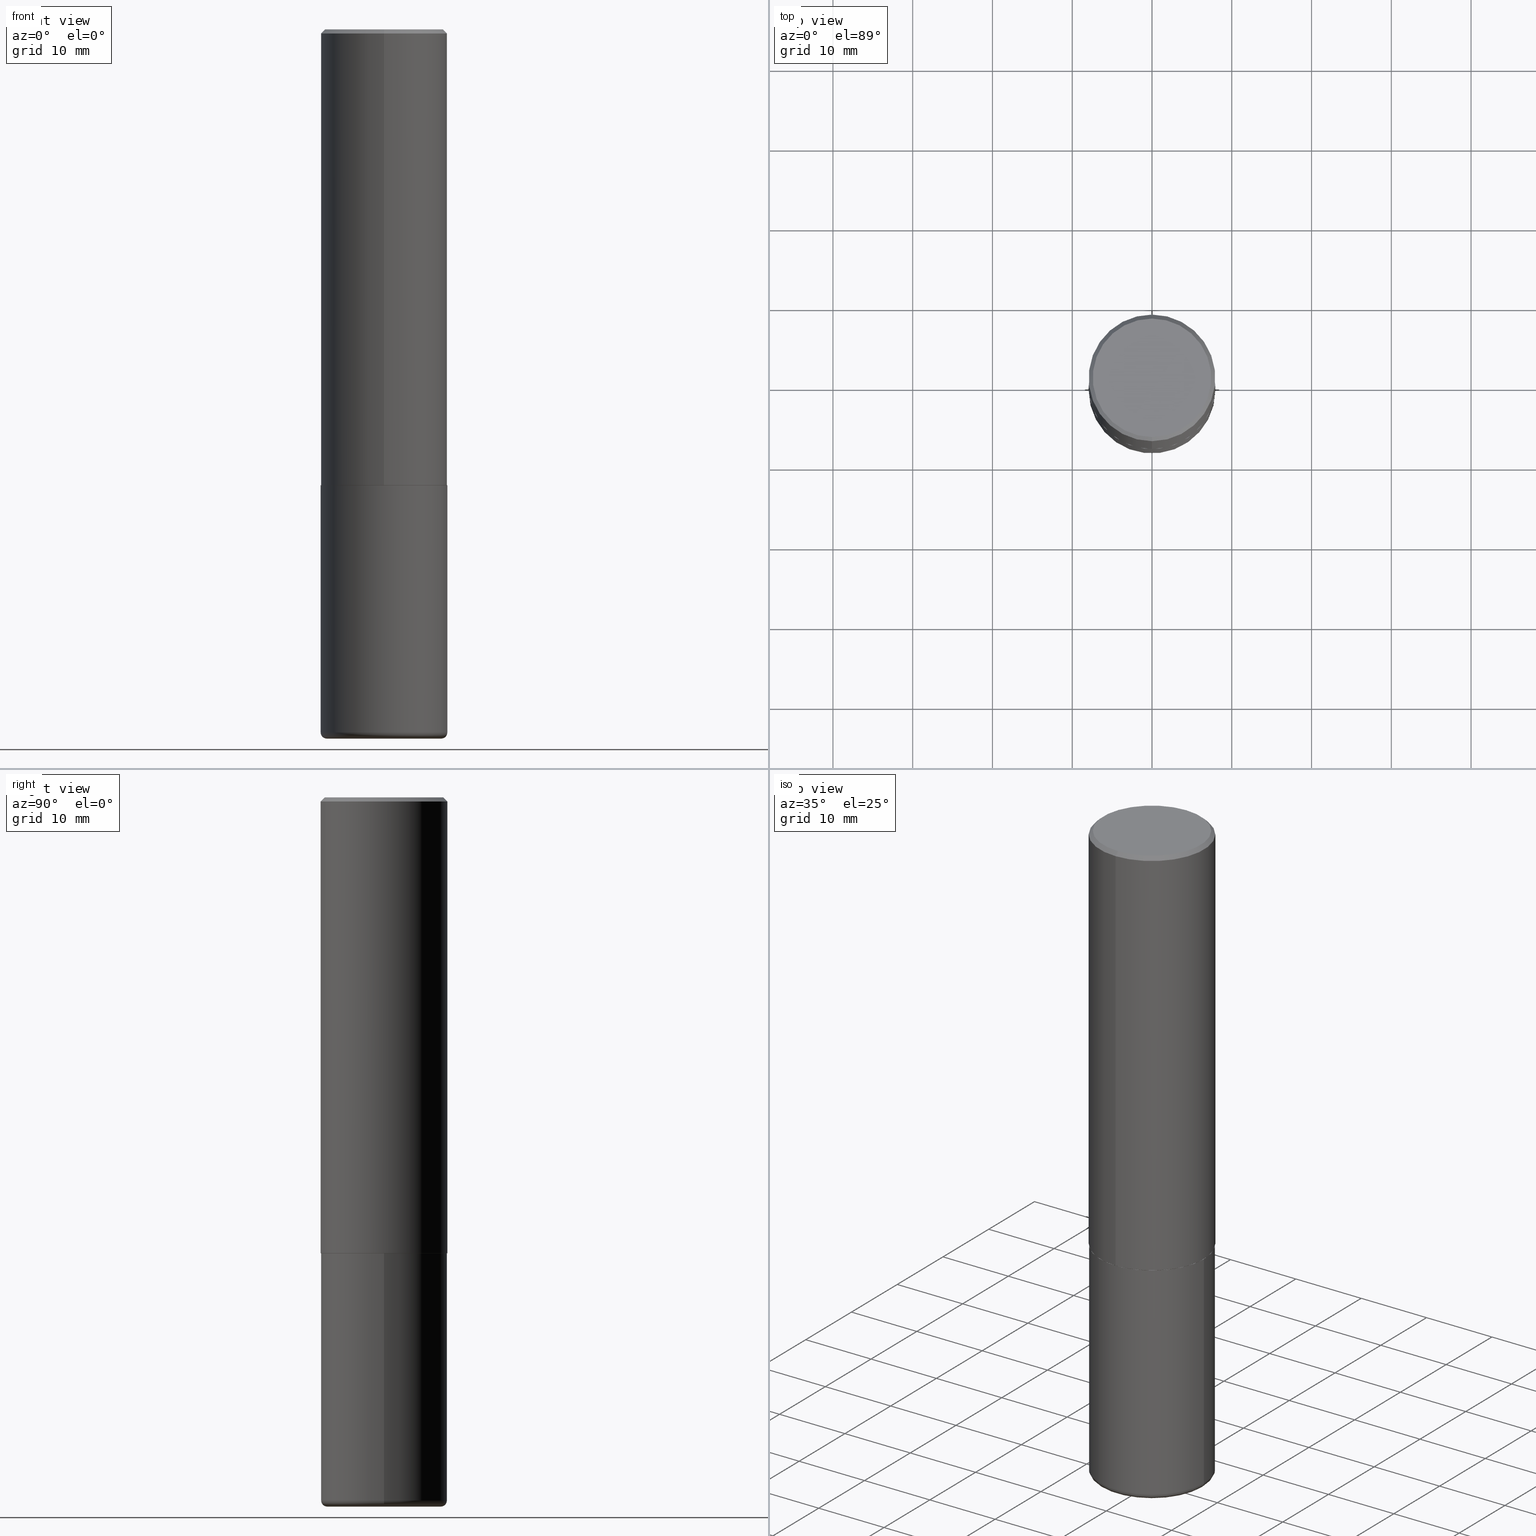
[diagram: canonical four-view strip — front | top / right | iso, engineering-drawing reading convention]
A machine part, canonical four-view strip (front | top / right | iso — engineering-drawing reading convention). The complete STEP part file that produces these views, byte-faithful:
ISO-10303-21;
HEADER;
FILE_DESCRIPTION (( 'STEP AP203' ),
    '1' );
FILE_NAME ('36709.STEP',
    '2024-03-01T17:24:08',
    ( '' ),
    ( '' ),
    'SwSTEP 2.0',
    'SolidWorks 2023',
    '' );
FILE_SCHEMA (( 'CONFIG_CONTROL_DESIGN' ));
ENDSEC;

DATA;
#1 = CARTESIAN_POINT ( 'NONE',  ( -2.182175836776905099E-15, -0.3125000000000081601, -2.248999999999998334 ) ) ;
#2 = ORGANIZATION ( 'UNSPECIFIED', 'UNSPECIFIED', '' ) ;
#3 = PERSON_AND_ORGANIZATION ( #79, #2 ) ;
#4 = CARTESIAN_POINT ( 'NONE',  ( 0.2824999999999999734, -1.419287164239738095E-14, -3.500000000000000444 ) ) ;
#5 = PERSON_AND_ORGANIZATION ( #79, #2 ) ;
#6 = LINE ( 'NONE', #131, #132 ) ;
#7 = DIRECTION ( 'NONE',  ( 1.000000000000000000, 0.000000000000000000, 0.000000000000000000 ) ) ;
#8 = APPROVAL_PERSON_ORGANIZATION ( #170, #62, #193 ) ;
#9 = VERTEX_POINT ( 'NONE', #1 ) ;
#10 = MANIFOLD_SOLID_BREP ( 'Body-Move/Copy2[1]', #94 ) ;
#11 = DIRECTION ( 'NONE',  ( -2.446358674475855534E-29, 3.490206996802678235E-15, 1.000000000000000000 ) ) ;
#12 = DIRECTION ( 'NONE',  ( 1.000000000000000000, -6.982962677686270655E-15, 0.000000000000000000 ) ) ;
#13 = AXIS2_PLACEMENT_3D ( 'NONE', #245, #206, #111 ) ;
#14 = DIRECTION ( 'NONE',  ( -2.446358674475855534E-29, 3.490206996802678235E-15, 1.000000000000000000 ) ) ;
#15 = APPROVAL_PERSON_ORGANIZATION ( #294, #377, #265 ) ;
#16 = APPROVAL ( #101, 'UNSPECIFIED' ) ;
#17 = CARTESIAN_POINT ( 'NONE',  ( 4.892717348951727429E-31, -6.980413993605380283E-17, -0.02000000000000006981 ) ) ;
#18 = EDGE_CURVE ( 'NONE', #192, #321, #404, .T. ) ;
#19 = DIRECTION ( 'NONE',  ( -2.446358674475855534E-29, 3.490206996802678235E-15, 1.000000000000000000 ) ) ;
#20 = AXIS2_PLACEMENT_3D ( 'NONE', #230, #365, #74 ) ;
#21 = ORIENTED_EDGE ( 'NONE', *, *, #239, .F. ) ;
#22 = CIRCLE ( 'NONE', #81, 0.3125000000000000000 ) ;
#23 = FACE_OUTER_BOUND ( 'NONE', #382, .T. ) ;
#24 = ORIENTED_EDGE ( 'NONE', *, *, #36, .F. ) ;
#25 = CARTESIAN_POINT ( 'NONE',  ( 3.832247084795318978E-29, -1.898936555520759464E-14, -3.500000000000000444 ) ) ;
#26 = DIMENSIONAL_EXPONENTS ( 1.000000000000000000, 0.000000000000000000, 0.000000000000000000, 0.000000000000000000, 0.000000000000000000, 0.000000000000000000, 0.000000000000000000 ) ;
#27 = EDGE_LOOP ( 'NONE', ( #350, #251, #411, #29 ) ) ;
#28 = DIRECTION ( 'NONE',  ( 1.000000000000000000, -6.982962677686266711E-15, 4.876176775795936353E-29 ) ) ;
#29 = ORIENTED_EDGE ( 'NONE', *, *, #116, .F. ) ;
#30 = AXIS2_PLACEMENT_3D ( 'NONE', #70, #169, #102 ) ;
#31 = DIRECTION ( 'NONE',  ( -6.982962677686265922E-15, -1.000000000000000000, 3.490206996802678235E-15 ) ) ;
#32 = CC_DESIGN_PERSON_AND_ORGANIZATION_ASSIGNMENT ( #301, #298, ( #269 ) ) ;
#33 = ORIENTED_EDGE ( 'NONE', *, *, #227, .F. ) ;
#34 =( CONVERSION_BASED_UNIT ( 'INCH', #252 ) LENGTH_UNIT ( ) NAMED_UNIT ( #26 ) );
#35 = CARTESIAN_POINT ( 'NONE',  ( -0.3125000000000000555, -9.894994196535401314E-15, -3.469999999999999751 ) ) ;
#36 = EDGE_CURVE ( 'NONE', #380, #253, #209, .T. ) ;
#37 = PERSON_AND_ORGANIZATION_ROLE ( 'classification_officer' ) ;
#38 = DIRECTION ( 'NONE',  ( -6.982962677686265133E-15, -1.000000000000000000, 3.496765431890256920E-15 ) ) ;
#39 = AXIS2_PLACEMENT_3D ( 'NONE', #173, #304, #361 ) ;
#40 = ADVANCED_FACE ( 'NONE', ( #225 ), #370, .T. ) ;
#41 = VECTOR ( 'NONE', #19, 39.37007874015748143 ) ;
#42 = LINE ( 'NONE', #100, #55 ) ;
#43 = MECHANICAL_CONTEXT ( 'NONE', #115, 'mechanical' ) ;
#44 = DIRECTION ( 'NONE',  ( -6.982962677686266711E-15, -1.000000000000000000, 3.491481338843145583E-15 ) ) ;
#45 = VERTEX_POINT ( 'NONE', #396 ) ;
#46 = CARTESIAN_POINT ( 'NONE',  ( 5.501860658896197188E-29, -7.849475535809221324E-15, -2.248999999999999222 ) ) ;
#47 = CARTESIAN_POINT ( 'NONE',  ( 8.559140821647978089E-29, -1.222018468595101092E-14, -3.500000000000000444 ) ) ;
#48 = LINE ( 'NONE', #375, #241 ) ;
#49 = UNCERTAINTY_MEASURE_WITH_UNIT (LENGTH_MEASURE( 1.000000000000000082E-05 ), #34, 'distance_accuracy_value', 'NONE');
#50 = DIRECTION ( 'NONE',  ( -6.982962677686265922E-15, -1.000000000000000000, 3.507991003100177457E-15 ) ) ;
#51 = FACE_OUTER_BOUND ( 'NONE', #177, .T. ) ;
#52 = VERTEX_POINT ( 'NONE', #35 ) ;
#53 = SECURITY_CLASSIFICATION ( '', '', #136 ) ;
#54 = DIRECTION ( 'NONE',  ( -2.446358674475855534E-29, 3.490206996802678235E-15, 1.000000000000000000 ) ) ;
#55 = VECTOR ( 'NONE', #368, 39.37007874015748143 ) ;
#56 = ORIENTED_EDGE ( 'NONE', *, *, #106, .T. ) ;
#57 = CC_DESIGN_SECURITY_CLASSIFICATION ( #53, ( #201 ) ) ;
#58 = CARTESIAN_POINT ( 'NONE',  ( 2.216893335571567797E-15, 0.3114999999999921720, -2.250000000000000444 ) ) ;
#59 = ORIENTED_EDGE ( 'NONE', *, *, #293, .T. ) ;
#60 = LINE ( 'NONE', #256, #88 ) ;
#61 = ORIENTED_EDGE ( 'NONE', *, *, #273, .F. ) ;
#62 = APPROVAL ( #99, 'UNSPECIFIED' ) ;
#63 = DIRECTION ( 'NONE',  ( 2.438088387897960049E-29, -3.491481338843145188E-15, -1.000000000000000000 ) ) ;
#64 = ORIENTED_EDGE ( 'NONE', *, *, #393, .T. ) ;
#65 = CONICAL_SURFACE ( 'NONE', #236, 0.3125000000000000000, 0.7853981633974469467 ) ;
#66 = DIRECTION ( 'NONE',  ( -2.446358674475855534E-29, 3.490206996802678235E-15, 1.000000000000000000 ) ) ;
#67 = APPROVAL_STATUS ( 'not_yet_approved' ) ;
#68 = FACE_OUTER_BOUND ( 'NONE', #331, .T. ) ;
#69 = APPROVAL_DATE_TIME ( #163, #62 ) ;
#70 = CARTESIAN_POINT ( 'NONE',  ( 8.485776757462424574E-29, -1.211544024578571439E-14, -3.469999999999999751 ) ) ;
#71 = CONICAL_SURFACE ( 'NONE', #412, 0.3114999999999999991, 0.7853981633975507526 ) ;
#72 = CIRCLE ( 'NONE', #276, 0.3124999999999999445 ) ;
#73 = PERSON_AND_ORGANIZATION ( #79, #2 ) ;
#74 = DIRECTION ( 'NONE',  ( -1.000000000000000000, 6.982962677686265922E-15, -4.876176775795935793E-29 ) ) ;
#75 = CARTESIAN_POINT ( 'NONE',  ( 0.000000000000000000, 0.000000000000000000, 0.000000000000000000 ) ) ;
#76 = CARTESIAN_POINT ( 'NONE',  ( 8.485776757462424574E-29, -1.211544024578571439E-14, -3.469999999999999751 ) ) ;
#77 = EDGE_CURVE ( 'NONE', #388, #159, #6, .T. ) ;
#78 = AXIS2_PLACEMENT_3D ( 'NONE', #378, #325, #28 ) ;
#79 = PERSON ( 'UNSPECIFIED', 'UNSPECIFIED', 'UNSPECIFIED', ('UNSPECIFIED'), ('UNSPECIFIED'), ('UNSPECIFIED') ) ;
#80 = DIRECTION ( 'NONE',  ( 2.446358674475855534E-29, -3.490206996802678235E-15, -1.000000000000000000 ) ) ;
#81 = AXIS2_PLACEMENT_3D ( 'NONE', #349, #117, #223 ) ;
#82 = CARTESIAN_POINT ( 'NONE',  ( 5.504307017570672990E-29, -7.852965742806024253E-15, -2.249999999999999556 ) ) ;
#83 = LINE ( 'NONE', #91, #360 ) ;
#84 = CYLINDRICAL_SURFACE ( 'NONE', #133, 0.3125000000000001665 ) ;
#85 = ORIENTED_EDGE ( 'NONE', *, *, #309, .F. ) ;
#86 = CARTESIAN_POINT ( 'NONE',  ( 5.543544336137775157E-45, -7.908945417915609657E-31, -2.266039070221584626E-16 ) ) ;
#87 = ORIENTED_EDGE ( 'NONE', *, *, #353, .F. ) ;
#88 = VECTOR ( 'NONE', #54, 39.37007874015748143 ) ;
#89 = DIRECTION ( 'NONE',  ( -1.000000000000000000, 6.982962677686265922E-15, -4.876176775795935793E-29 ) ) ;
#90 = ORIENTED_EDGE ( 'NONE', *, *, #106, .F. ) ;
#91 = CARTESIAN_POINT ( 'NONE',  ( 2.182175836776958741E-15, 0.3124999999999999445, -0.02000000000000116268 ) ) ;
#92 = ORIENTED_EDGE ( 'NONE', *, *, #123, .F. ) ;
#93 = ORIENTED_EDGE ( 'NONE', *, *, #277, .T. ) ;
#94 = CLOSED_SHELL ( 'NONE', ( #165, #145, #137, #406, #97, #311 ) ) ;
#95 = CIRCLE ( 'NONE', #242, 0.3114999999999999991 ) ;
#96 = DIRECTION ( 'NONE',  ( 0.000000000000000000, 0.000000000000000000, 1.000000000000000000 ) ) ;
#97 = ADVANCED_FACE ( 'NONE', ( #68 ), #142, .T. ) ;
#98 = DIRECTION ( 'NONE',  ( -6.982962677686265133E-15, -1.000000000000000000, 3.490206996802678235E-15 ) ) ;
#99 = APPROVAL_STATUS ( 'not_yet_approved' ) ;
#100 = CARTESIAN_POINT ( 'NONE',  ( 0.3125000000000000000, -2.182175836776958347E-15, 1.523805242436230075E-29 ) ) ;
#101 = APPROVAL_STATUS ( 'not_yet_approved' ) ;
#102 = DIRECTION ( 'NONE',  ( 1.000000000000000000, -6.982962677686264344E-15, 4.883557194083112340E-29 ) ) ;
#103 = CIRCLE ( 'NONE', #414, 0.2824999999999999734 ) ;
#104 = SHAPE_DEFINITION_REPRESENTATION ( #146, #114 ) ;
#105 = DIRECTION ( 'NONE',  ( 5.024295867788576727E-15, 0.7071067811866224018, 0.7071067811864726327 ) ) ;
#106 = EDGE_CURVE ( 'NONE', #323, #118, #42, .T. ) ;
#107 = DIRECTION ( 'NONE',  ( -6.982962677686265922E-15, -1.000000000000000000, 3.496765431890253764E-15 ) ) ;
#108 = CONICAL_SURFACE ( 'NONE', #39, 0.3114999999999999991, 0.7853981633975507526 ) ;
#109 = CIRCLE ( 'NONE', #306, 0.2925000000000002043 ) ;
#110 = DIRECTION ( 'NONE',  ( 6.982962677686265133E-15, 1.000000000000000000, -3.496765431890256920E-15 ) ) ;
#111 = DIRECTION ( 'NONE',  ( 6.982962677686265922E-15, 1.000000000000000000, -3.490206996802678235E-15 ) ) ;
#112 = CIRCLE ( 'NONE', #179, 0.3125000000000000000 ) ;
#113 = LOCAL_TIME ( 12, 24, 8.000000000000000000, #139 ) ;
#114 = ADVANCED_BREP_SHAPE_REPRESENTATION ( '36709', ( #10, #285, #184 ), #319 ) ;
#115 = APPLICATION_CONTEXT ( 'configuration controlled 3d designs of mechanical parts and assemblies' ) ;
#116 = EDGE_CURVE ( 'NONE', #124, #323, #313, .T. ) ;
#117 = DIRECTION ( 'NONE',  ( -2.445468806185136597E-29, 3.491481338843145583E-15, 1.000000000000000000 ) ) ;
#118 = VERTEX_POINT ( 'NONE', #340 ) ;
#119 = ADVANCED_FACE ( 'NONE', ( #172 ), #108, .T. ) ;
#120 = ORIENTED_EDGE ( 'NONE', *, *, #334, .F. ) ;
#121 = DIRECTION ( 'NONE',  ( -2.446358674475855534E-29, 3.490206996802678235E-15, 1.000000000000000000 ) ) ;
#122 = CIRCLE ( 'NONE', #175, 0.3114999999999999991 ) ;
#123 = EDGE_CURVE ( 'NONE', #127, #52, #366, .T. ) ;
#124 = VERTEX_POINT ( 'NONE', #4 ) ;
#125 = LOCAL_TIME ( 12, 24, 8.000000000000000000, #232 ) ;
#126 = PLANE ( 'NONE',  #246 ) ;
#127 = VERTEX_POINT ( 'NONE', #135 ) ;
#128 = APPLICATION_PROTOCOL_DEFINITION ( 'international standard', 'config_control_design', 1994, #115 ) ;
#129 = ORIENTED_EDGE ( 'NONE', *, *, #174, .T. ) ;
#130 = PERSON_AND_ORGANIZATION ( #79, #2 ) ;
#131 = CARTESIAN_POINT ( 'NONE',  ( 2.213340621892766504E-15, 0.3114999999999921720, -2.250000000000000444 ) ) ;
#132 = VECTOR ( 'NONE', #105, 39.37007874015748143 ) ;
#133 = AXIS2_PLACEMENT_3D ( 'NONE', #213, #121, #351 ) ;
#134 = APPLICATION_PROTOCOL_DEFINITION ( 'international standard', 'config_control_design', 1994, #300 ) ;
#135 = CARTESIAN_POINT ( 'NONE',  ( -0.2824999999999999734, -1.005394782698206391E-14, -3.500000000000000444 ) ) ;
#136 = SECURITY_CLASSIFICATION_LEVEL ( 'unclassified' ) ;
#137 = ADVANCED_FACE ( 'NONE', ( #266 ), #390, .F. ) ;
#138 = DIRECTION ( 'NONE',  ( -2.445468806185136597E-29, 3.491481338843145583E-15, 1.000000000000000000 ) ) ;
#139 = COORDINATED_UNIVERSAL_TIME_OFFSET ( 5, 0, .BEHIND. ) ;
#140 = FACE_OUTER_BOUND ( 'NONE', #409, .T. ) ;
#141 = PRODUCT_DEFINITION ( 'UNKNOWN', '', #201, #316 ) ;
#142 = TOROIDAL_SURFACE ( 'NONE', #217, 0.2824999999999999734, 0.03000000000000022787 ) ;
#143 = AXIS2_PLACEMENT_3D ( 'NONE', #383, #415, #322 ) ;
#144 = ORIENTED_EDGE ( 'NONE', *, *, #77, .T. ) ;
#145 = ADVANCED_FACE ( 'NONE', ( #234 ), #275, .T. ) ;
#146 = PRODUCT_DEFINITION_SHAPE ( 'NONE', 'NONE',  #141 ) ;
#147 = DIRECTION ( 'NONE',  ( -2.446358674475855534E-29, 3.490206996802678235E-15, 1.000000000000000000 ) ) ;
#148 = FACE_OUTER_BOUND ( 'NONE', #355, .T. ) ;
#149 = LOCAL_TIME ( 12, 24, 8.000000000000000000, #270 ) ;
#150 = FACE_OUTER_BOUND ( 'NONE', #352, .T. ) ;
#151 = DIRECTION ( 'NONE',  ( -6.982962677686265922E-15, -1.000000000000000000, 3.507991003100177457E-15 ) ) ;
#152 = DIRECTION ( 'NONE',  ( 1.000000000000000000, -6.982962677686266711E-15, 4.876176775795936353E-29 ) ) ;
#153 = CC_DESIGN_APPROVAL ( #377, ( #201 ) ) ;
#154 = CARTESIAN_POINT ( 'NONE',  ( -0.3125000000000000000, 2.220446049250313081E-15, -1.537167215704658232E-29 ) ) ;
#155 = EDGE_LOOP ( 'NONE', ( #129, #157 ) ) ;
#156 = CYLINDRICAL_SURFACE ( 'NONE', #78, 0.3125000000000000000 ) ;
#157 = ORIENTED_EDGE ( 'NONE', *, *, #273, .T. ) ;
#158 = DIRECTION ( 'NONE',  ( -2.445468806185136877E-29, 3.491481338843145188E-15, 1.000000000000000000 ) ) ;
#159 = VERTEX_POINT ( 'NONE', #302 ) ;
#160 = ORIENTED_EDGE ( 'NONE', *, *, #293, .F. ) ;
#161 = CARTESIAN_POINT ( 'NONE',  ( -2.175192874099216718E-15, -0.3115000000000078817, -2.249999999999998224 ) ) ;
#162 = ORIENTED_EDGE ( 'NONE', *, *, #18, .T. ) ;
#163 = DATE_AND_TIME ( #332, #149 ) ;
#164 = ORIENTED_EDGE ( 'NONE', *, *, #353, .T. ) ;
#165 = ADVANCED_FACE ( 'NONE', ( #140 ), #342, .T. ) ;
#166 = CALENDAR_DATE ( 2024, 1, 3 ) ;
#167 = CARTESIAN_POINT ( 'NONE',  ( -0.2824999999999999734, -1.010815701726343156E-14, -3.469999999999999751 ) ) ;
#168 = AXIS2_PLACEMENT_3D ( 'NONE', #372, #80, #207 ) ;
#169 = DIRECTION ( 'NONE',  ( -2.445468806185136597E-29, 3.491481338843145583E-15, 1.000000000000000000 ) ) ;
#170 = PERSON_AND_ORGANIZATION ( #79, #2 ) ;
#171 = PRODUCT_RELATED_PRODUCT_CATEGORY ( 'detail', '', ( #269 ) ) ;
#172 = FACE_OUTER_BOUND ( 'NONE', #261, .T. ) ;
#173 = CARTESIAN_POINT ( 'NONE',  ( 5.504307017570672990E-29, -7.852965742806024253E-15, -2.249999999999999556 ) ) ;
#174 = EDGE_CURVE ( 'NONE', #118, #45, #112, .T. ) ;
#175 = AXIS2_PLACEMENT_3D ( 'NONE', #278, #147, #50 ) ;
#176 = APPROVAL_PERSON_ORGANIZATION ( #267, #16, #303 ) ;
#177 = EDGE_LOOP ( 'NONE', ( #85, #21 ) ) ;
#178 = DIRECTION ( 'NONE',  ( -2.445468806185136597E-29, 3.491481338843145583E-15, 1.000000000000000000 ) ) ;
#179 = AXIS2_PLACEMENT_3D ( 'NONE', #374, #312, #279 ) ;
#180 = LOCAL_TIME ( 12, 24, 8.000000000000000000, #263 ) ;
#181 = CARTESIAN_POINT ( 'NONE',  ( 5.504307017570672990E-29, -7.852965742806024253E-15, -2.249999999999999556 ) ) ;
#182 = ORIENTED_EDGE ( 'NONE', *, *, #258, .F. ) ;
#183 = CLOSED_SHELL ( 'NONE', ( #119, #397, #262, #249, #40, #231, #280, #202 ) ) ;
#184 = AXIS2_PLACEMENT_3D ( 'NONE', #75, #96, #7 ) ;
#185 = LINE ( 'NONE', #320, #41 ) ;
#186 = ORIENTED_EDGE ( 'NONE', *, *, #330, .F. ) ;
#187 = DIRECTION ( 'NONE',  ( -2.445468806185136597E-29, 3.491481338843145583E-15, 1.000000000000000000 ) ) ;
#188 = ORIENTED_EDGE ( 'NONE', *, *, #239, .T. ) ;
#189 = FACE_OUTER_BOUND ( 'NONE', #260, .T. ) ;
#190 = ORIENTED_EDGE ( 'NONE', *, *, #334, .T. ) ;
#191 = CARTESIAN_POINT ( 'NONE',  ( 0.3125000000000000555, -1.429761608256267432E-14, -3.469999999999999751 ) ) ;
#192 = VERTEX_POINT ( 'NONE', #238 ) ;
#193 = APPROVAL_ROLE ( '' ) ;
#194 = DIRECTION ( 'NONE',  ( -2.446358674475855534E-29, 3.490206996802678235E-15, 1.000000000000000000 ) ) ;
#195 = DATE_AND_TIME ( #339, #113 ) ;
#196 = DIRECTION ( 'NONE',  ( -2.445468806185136597E-29, 3.491481338843145583E-15, 1.000000000000000000 ) ) ;
#197 = EDGE_CURVE ( 'NONE', #253, #380, #235, .T. ) ;
#198 = DATE_AND_TIME ( #166, #314 ) ;
#199 = CARTESIAN_POINT ( 'NONE',  ( 4.892717348951727429E-31, -6.980413993605380283E-17, -0.02000000000000006981 ) ) ;
#200 = AXIS2_PLACEMENT_3D ( 'NONE', #17, #14, #347 ) ;
#201 = PRODUCT_DEFINITION_FORMATION_WITH_SPECIFIED_SOURCE ( 'ANY', '', #269, .NOT_KNOWN. ) ;
#202 = ADVANCED_FACE ( 'NONE', ( #150 ), #348, .F. ) ;
#203 = DATE_AND_TIME ( #367, #125 ) ;
#204 = ORIENTED_EDGE ( 'NONE', *, *, #345, .T. ) ;
#205 = DIRECTION ( 'NONE',  ( 1.000000000000000000, -6.982962677686280121E-15, 0.000000000000000000 ) ) ;
#206 = DIRECTION ( 'NONE',  ( 2.446358674475855254E-29, -3.490206996802678235E-15, -1.000000000000000000 ) ) ;
#207 = DIRECTION ( 'NONE',  ( 6.982962677686265133E-15, 1.000000000000000000, -3.496765431890256920E-15 ) ) ;
#208 = DIRECTION ( 'NONE',  ( -6.982962677686265922E-15, -1.000000000000000000, 3.496765431890253764E-15 ) ) ;
#209 = CIRCLE ( 'NONE', #327, 0.3125000000000000000 ) ;
#210 = CC_DESIGN_APPROVAL ( #62, ( #141 ) ) ;
#211 = EDGE_CURVE ( 'NONE', #159, #9, #371, .T. ) ;
#212 = CARTESIAN_POINT ( 'NONE',  ( 5.501860658896197188E-29, -7.849475535809221324E-15, -2.248999999999999222 ) ) ;
#213 = CARTESIAN_POINT ( 'NONE',  ( 0.000000000000000000, 0.000000000000000000, 0.000000000000000000 ) ) ;
#214 = PLANE ( 'NONE',  #289 ) ;
#215 = CC_DESIGN_DATE_AND_TIME_ASSIGNMENT ( #198, #337, ( #53 ) ) ;
#216 = ORIENTED_EDGE ( 'NONE', *, *, #227, .T. ) ;
#217 = AXIS2_PLACEMENT_3D ( 'NONE', #76, #196, #237 ) ;
#218 = AXIS2_PLACEMENT_3D ( 'NONE', #286, #281, #379 ) ;
#219 = DIRECTION ( 'NONE',  ( -6.982962677686265922E-15, -1.000000000000000000, 3.507991003100177457E-15 ) ) ;
#220 = EDGE_LOOP ( 'NONE', ( #326, #398, #416, #359 ) ) ;
#221 = FACE_OUTER_BOUND ( 'NONE', #220, .T. ) ;
#222 = EDGE_LOOP ( 'NONE', ( #33, #87, #64, #287 ) ) ;
#223 = DIRECTION ( 'NONE',  ( 1.000000000000000000, -6.982962677686265133E-15, 0.000000000000000000 ) ) ;
#224 = ORIENTED_EDGE ( 'NONE', *, *, #197, .T. ) ;
#225 = FACE_OUTER_BOUND ( 'NONE', #336, .T. ) ;
#226 = CALENDAR_DATE ( 2024, 1, 3 ) ;
#227 = EDGE_CURVE ( 'NONE', #192, #253, #48, .T. ) ;
#228 = CARTESIAN_POINT ( 'NONE',  ( 0.2824999999999999734, -1.408812720223208600E-14, -3.469999999999999751 ) ) ;
#229 = PERSON_AND_ORGANIZATION_ROLE ( 'creator' ) ;
#230 = CARTESIAN_POINT ( 'NONE',  ( 5.502304813916556222E-29, -7.855833012397075293E-15, -2.249999999999999556 ) ) ;
#231 = ADVANCED_FACE ( 'NONE', ( #310 ), #71, .T. ) ;
#232 = COORDINATED_UNIVERSAL_TIME_OFFSET ( 5, 0, .BEHIND. ) ;
#233 = AXIS2_PLACEMENT_3D ( 'NONE', #46, #11, #107 ) ;
#234 = FACE_OUTER_BOUND ( 'NONE', #27, .T. ) ;
#235 = CIRCLE ( 'NONE', #200, 0.3125000000000000000 ) ;
#236 = AXIS2_PLACEMENT_3D ( 'NONE', #274, #400, #110 ) ;
#237 = DIRECTION ( 'NONE',  ( 1.000000000000000000, -6.982962677686264344E-15, 4.883557194083112340E-29 ) ) ;
#238 = CARTESIAN_POINT ( 'NONE',  ( -2.075300644325888676E-15, -0.2925000000000002043, 7.942816395426258046E-16 ) ) ;
#239 = EDGE_CURVE ( 'NONE', #388, #284, #122, .T. ) ;
#240 = FACE_OUTER_BOUND ( 'NONE', #222, .T. ) ;
#241 = VECTOR ( 'NONE', #315, 39.37007874015748143 ) ;
#242 = AXIS2_PLACEMENT_3D ( 'NONE', #358, #354, #219 ) ;
#243 = DIRECTION ( 'NONE',  ( -2.446358674475855534E-29, 3.490206996802678235E-15, 1.000000000000000000 ) ) ;
#244 = CC_DESIGN_PERSON_AND_ORGANIZATION_ASSIGNMENT ( #5, #389, ( #201 ) ) ;
#245 = CARTESIAN_POINT ( 'NONE',  ( 2.042516583223234512E-15, 0.2925000000000002043, -1.134187500075863227E-15 ) ) ;
#246 = AXIS2_PLACEMENT_3D ( 'NONE', #25, #63, #89 ) ;
#247 = EDGE_CURVE ( 'NONE', #9, #159, #343, .T. ) ;
#248 = LINE ( 'NONE', #154, #401 ) ;
#249 = ADVANCED_FACE ( 'NONE', ( #240 ), #373, .T. ) ;
#250 = CARTESIAN_POINT ( 'NONE',  ( -2.175192874099216718E-15, -0.3115000000000078817, -2.249999999999998224 ) ) ;
#251 = ORIENTED_EDGE ( 'NONE', *, *, #123, .T. ) ;
#252 = LENGTH_MEASURE_WITH_UNIT ( LENGTH_MEASURE( 0.02539999999999999897 ), #290 );
#253 = VERTEX_POINT ( 'NONE', #346 ) ;
#254 = AXIS2_PLACEMENT_3D ( 'NONE', #212, #308, #208 ) ;
#255 = CIRCLE ( 'NONE', #218, 0.2824999999999999734 ) ;
#256 = CARTESIAN_POINT ( 'NONE',  ( 2.220446049250313475E-15, 0.3125000000000001665, -1.090689686500837491E-15 ) ) ;
#257 = ORIENTED_EDGE ( 'NONE', *, *, #18, .F. ) ;
#258 = EDGE_CURVE ( 'NONE', #124, #127, #103, .T. ) ;
#259 = DIRECTION ( 'NONE',  ( -4.937700262165053702E-15, -0.7071067811866175168, 0.7071067811864775177 ) ) ;
#260 = EDGE_LOOP ( 'NONE', ( #182, #384 ) ) ;
#261 = EDGE_LOOP ( 'NONE', ( #386, #144, #292, #120 ) ) ;
#262 = ADVANCED_FACE ( 'NONE', ( #148 ), #65, .T. ) ;
#263 = COORDINATED_UNIVERSAL_TIME_OFFSET ( 5, 0, .BEHIND. ) ;
#264 = ORIENTED_EDGE ( 'NONE', *, *, #399, .F. ) ;
#265 = APPROVAL_ROLE ( '' ) ;
#266 = FACE_OUTER_BOUND ( 'NONE', #155, .T. ) ;
#267 = PERSON_AND_ORGANIZATION ( #79, #2 ) ;
#268 = ORIENTED_EDGE ( 'NONE', *, *, #116, .T. ) ;
#269 = PRODUCT ( '36709', '36709', '', ( #43 ) ) ;
#270 = COORDINATED_UNIVERSAL_TIME_OFFSET ( 5, 0, .BEHIND. ) ;
#271 = CARTESIAN_POINT ( 'NONE',  ( 0.000000000000000000, 0.000000000000000000, 0.000000000000000000 ) ) ;
#272 = ORIENTED_EDGE ( 'NONE', *, *, #324, .T. ) ;
#273 = EDGE_CURVE ( 'NONE', #45, #118, #22, .T. ) ;
#274 = CARTESIAN_POINT ( 'NONE',  ( 4.892717348951727429E-31, -6.980413993605380283E-17, -0.02000000000000006981 ) ) ;
#275 = TOROIDAL_SURFACE ( 'NONE', #30, 0.2824999999999999734, 0.03000000000000022787 ) ;
#276 = AXIS2_PLACEMENT_3D ( 'NONE', #317, #187, #356 ) ;
#277 = EDGE_CURVE ( 'NONE', #323, #52, #328, .T. ) ;
#278 = CARTESIAN_POINT ( 'NONE',  ( 5.504307017570672990E-29, -7.852965742806024253E-15, -2.249999999999999556 ) ) ;
#279 = DIRECTION ( 'NONE',  ( 1.000000000000000000, -6.982962677686265133E-15, 0.000000000000000000 ) ) ;
#280 = ADVANCED_FACE ( 'NONE', ( #51 ), #214, .F. ) ;
#281 = DIRECTION ( 'NONE',  ( -2.445468806185136597E-29, 3.491481338843145583E-15, 1.000000000000000000 ) ) ;
#282 = ORIENTED_EDGE ( 'NONE', *, *, #174, .F. ) ;
#283 = DIRECTION ( 'NONE',  ( -2.446358674475855254E-29, 3.490206996802678235E-15, 1.000000000000000000 ) ) ;
#284 = VERTEX_POINT ( 'NONE', #161 ) ;
#285 = MANIFOLD_SOLID_BREP ( 'Body-Move/Copy2[2]', #183 ) ;
#286 = CARTESIAN_POINT ( 'NONE',  ( 8.559140821647978089E-29, -1.222018468595101092E-14, -3.500000000000000444 ) ) ;
#287 = ORIENTED_EDGE ( 'NONE', *, *, #36, .T. ) ;
#288 = AXIS2_PLACEMENT_3D ( 'NONE', #228, #44, #205 ) ;
#289 = AXIS2_PLACEMENT_3D ( 'NONE', #181, #283, #31 ) ;
#290 =( LENGTH_UNIT ( ) NAMED_UNIT ( * ) SI_UNIT ( $, .METRE. ) );
#291 = EDGE_LOOP ( 'NONE', ( #318, #188, #190, #418 ) ) ;
#292 = ORIENTED_EDGE ( 'NONE', *, *, #247, .F. ) ;
#293 = EDGE_CURVE ( 'NONE', #52, #323, #72, .T. ) ;
#294 = PERSON_AND_ORGANIZATION ( #79, #2 ) ;
#295 = DIRECTION ( 'NONE',  ( -2.446358674475855534E-29, 3.490206996802678235E-15, 1.000000000000000000 ) ) ;
#296 = CC_DESIGN_PERSON_AND_ORGANIZATION_ASSIGNMENT ( #73, #37, ( #53 ) ) ;
#297 = AXIS2_PLACEMENT_3D ( 'NONE', #167, #392, #299 ) ;
#298 = PERSON_AND_ORGANIZATION_ROLE ( 'design_owner' ) ;
#299 = DIRECTION ( 'NONE',  ( -1.000000000000000000, 7.105427357601001859E-15, 0.000000000000000000 ) ) ;
#300 = APPLICATION_CONTEXT ( 'configuration controlled 3d designs of mechanical parts and assemblies' ) ;
#301 = PERSON_AND_ORGANIZATION ( #79, #2 ) ;
#302 = CARTESIAN_POINT ( 'NONE',  ( 2.220446049250341874E-15, 0.3124999999999924505, -2.249000000000000554 ) ) ;
#303 = APPROVAL_ROLE ( '' ) ;
#304 = DIRECTION ( 'NONE',  ( -2.446358674475855534E-29, 3.490206996802678235E-15, 1.000000000000000000 ) ) ;
#305 = CARTESIAN_POINT ( 'NONE',  ( 0.000000000000000000, 0.000000000000000000, 0.000000000000000000 ) ) ;
#306 = AXIS2_PLACEMENT_3D ( 'NONE', #86, #403, #410 ) ;
#307 = CC_DESIGN_PERSON_AND_ORGANIZATION_ASSIGNMENT ( #3, #391, ( #201 ) ) ;
#308 = DIRECTION ( 'NONE',  ( -2.446358674475855534E-29, 3.490206996802678235E-15, 1.000000000000000000 ) ) ;
#309 = EDGE_CURVE ( 'NONE', #284, #388, #95, .T. ) ;
#310 = FACE_OUTER_BOUND ( 'NONE', #291, .T. ) ;
#311 = ADVANCED_FACE ( 'NONE', ( #189 ), #126, .T. ) ;
#312 = DIRECTION ( 'NONE',  ( -2.445468806185136597E-29, 3.491481338843145583E-15, 1.000000000000000000 ) ) ;
#313 = CIRCLE ( 'NONE', #288, 0.03000000000000022787 ) ;
#314 = LOCAL_TIME ( 12, 24, 8.000000000000000000, #364 ) ;
#315 = DIRECTION ( 'NONE',  ( -4.851104656540957175E-15, -0.7071067811865490160, -0.7071067811865460184 ) ) ;
#316 = DESIGN_CONTEXT ( 'detailed design', #300, 'design' ) ;
#317 = CARTESIAN_POINT ( 'NONE',  ( 8.485776757462424574E-29, -1.211544024578571439E-14, -3.469999999999999751 ) ) ;
#318 = ORIENTED_EDGE ( 'NONE', *, *, #77, .F. ) ;
#319 =( GEOMETRIC_REPRESENTATION_CONTEXT ( 3 ) GLOBAL_UNCERTAINTY_ASSIGNED_CONTEXT ( ( #49 ) ) GLOBAL_UNIT_ASSIGNED_CONTEXT ( ( #34, #417, #369 ) ) REPRESENTATION_CONTEXT ( 'NONE', 'WORKASPACE' ) );
#320 = CARTESIAN_POINT ( 'NONE',  ( -2.182175836776959136E-15, -0.3125000000000001665, 1.090689686500837491E-15 ) ) ;
#321 = VERTEX_POINT ( 'NONE', #381 ) ;
#322 = DIRECTION ( 'NONE',  ( 1.000000000000000000, -6.982962677686264344E-15, 0.000000000000000000 ) ) ;
#323 = VERTEX_POINT ( 'NONE', #191 ) ;
#324 = EDGE_CURVE ( 'NONE', #9, #253, #185, .T. ) ;
#325 = DIRECTION ( 'NONE',  ( -2.445468806185136597E-29, 3.491481338843145583E-15, 1.000000000000000000 ) ) ;
#326 = ORIENTED_EDGE ( 'NONE', *, *, #247, .T. ) ;
#327 = AXIS2_PLACEMENT_3D ( 'NONE', #199, #194, #38 ) ;
#328 = CIRCLE ( 'NONE', #143, 0.3124999999999999445 ) ;
#329 = LINE ( 'NONE', #250, #405 ) ;
#330 = EDGE_CURVE ( 'NONE', #52, #45, #248, .T. ) ;
#331 = EDGE_LOOP ( 'NONE', ( #92, #204, #268, #160 ) ) ;
#332 = CALENDAR_DATE ( 2024, 1, 3 ) ;
#333 = ORIENTED_EDGE ( 'NONE', *, *, #330, .T. ) ;
#334 = EDGE_CURVE ( 'NONE', #284, #9, #329, .T. ) ;
#335 = APPROVAL_DATE_TIME ( #195, #377 ) ;
#336 = EDGE_LOOP ( 'NONE', ( #264, #408, #272, #24 ) ) ;
#337 = DATE_TIME_ROLE ( 'classification_date' ) ;
#338 = CARTESIAN_POINT ( 'NONE',  ( 5.543544336137775157E-45, -7.908945417915609657E-31, -2.266039070221584626E-16 ) ) ;
#339 = CALENDAR_DATE ( 2024, 1, 3 ) ;
#340 = CARTESIAN_POINT ( 'NONE',  ( 0.3125000000000000000, -1.003800884917403364E-14, -2.249999999999999556 ) ) ;
#341 = CC_DESIGN_DATE_AND_TIME_ASSIGNMENT ( #362, #387, ( #141 ) ) ;
#342 = CYLINDRICAL_SURFACE ( 'NONE', #413, 0.3125000000000000000 ) ;
#343 = CIRCLE ( 'NONE', #233, 0.3125000000000002776 ) ;
#344 = CC_DESIGN_APPROVAL ( #16, ( #53 ) ) ;
#345 = EDGE_CURVE ( 'NONE', #127, #124, #255, .T. ) ;
#346 = CARTESIAN_POINT ( 'NONE',  ( -2.143905624303602824E-15, -0.3125000000000000555, -0.01999999999999897693 ) ) ;
#347 = DIRECTION ( 'NONE',  ( -6.982962677686265133E-15, -1.000000000000000000, 3.496765431890256920E-15 ) ) ;
#348 = PLANE ( 'NONE',  #13 ) ;
#349 = CARTESIAN_POINT ( 'NONE',  ( 5.502304813916556222E-29, -7.855833012397075293E-15, -2.249999999999999556 ) ) ;
#350 = ORIENTED_EDGE ( 'NONE', *, *, #258, .T. ) ;
#351 = DIRECTION ( 'NONE',  ( -6.982962677686265133E-15, -1.000000000000000000, 3.490206996802678235E-15 ) ) ;
#352 = EDGE_LOOP ( 'NONE', ( #164, #162 ) ) ;
#353 = EDGE_CURVE ( 'NONE', #321, #192, #109, .T. ) ;
#354 = DIRECTION ( 'NONE',  ( -2.446358674475855534E-29, 3.490206996802678235E-15, 1.000000000000000000 ) ) ;
#355 = EDGE_LOOP ( 'NONE', ( #257, #216, #224, #357 ) ) ;
#356 = DIRECTION ( 'NONE',  ( 1.000000000000000000, -6.982962677686264344E-15, 0.000000000000000000 ) ) ;
#357 = ORIENTED_EDGE ( 'NONE', *, *, #393, .F. ) ;
#358 = CARTESIAN_POINT ( 'NONE',  ( 5.504307017570672990E-29, -7.852965742806024253E-15, -2.249999999999999556 ) ) ;
#359 = ORIENTED_EDGE ( 'NONE', *, *, #324, .F. ) ;
#360 = VECTOR ( 'NONE', #407, 39.37007874015748143 ) ;
#361 = DIRECTION ( 'NONE',  ( -6.982962677686265922E-15, -1.000000000000000000, 3.507991003100177457E-15 ) ) ;
#362 = DATE_AND_TIME ( #226, #180 ) ;
#363 = DIRECTION ( 'NONE',  ( -6.982962677686266711E-15, -1.000000000000000000, 3.490206996802677840E-15 ) ) ;
#364 = COORDINATED_UNIVERSAL_TIME_OFFSET ( 5, 0, .BEHIND. ) ;
#365 = DIRECTION ( 'NONE',  ( 2.438088387897960049E-29, -3.491481338843145188E-15, -1.000000000000000000 ) ) ;
#366 = CIRCLE ( 'NONE', #297, 0.03000000000000022787 ) ;
#367 = CALENDAR_DATE ( 2024, 1, 3 ) ;
#368 = DIRECTION ( 'NONE',  ( -2.445468806185136877E-29, 3.491481338843145188E-15, 1.000000000000000000 ) ) ;
#369 =( NAMED_UNIT ( * ) SI_UNIT ( $, .STERADIAN. ) SOLID_ANGLE_UNIT ( ) );
#370 = CYLINDRICAL_SURFACE ( 'NONE', #376, 0.3125000000000001665 ) ;
#371 = CIRCLE ( 'NONE', #254, 0.3125000000000002776 ) ;
#372 = CARTESIAN_POINT ( 'NONE',  ( 4.892717348951727429E-31, -6.980413993605380283E-17, -0.02000000000000006981 ) ) ;
#373 = CONICAL_SURFACE ( 'NONE', #168, 0.3125000000000000000, 0.7853981633974469467 ) ;
#374 = CARTESIAN_POINT ( 'NONE',  ( 5.502304813916556222E-29, -7.855833012397075293E-15, -2.249999999999999556 ) ) ;
#375 = CARTESIAN_POINT ( 'NONE',  ( -2.143905624303602824E-15, -0.3125000000000000555, -0.01999999999999897693 ) ) ;
#376 = AXIS2_PLACEMENT_3D ( 'NONE', #271, #66, #98 ) ;
#377 = APPROVAL ( #67, 'UNSPECIFIED' ) ;
#378 = CARTESIAN_POINT ( 'NONE',  ( 0.000000000000000000, 0.000000000000000000, 0.000000000000000000 ) ) ;
#379 = DIRECTION ( 'NONE',  ( 1.000000000000000000, -6.982962677686270655E-15, 0.000000000000000000 ) ) ;
#380 = VERTEX_POINT ( 'NONE', #385 ) ;
#381 = CARTESIAN_POINT ( 'NONE',  ( 2.112346210000096627E-15, 0.2925000000000002043, -1.247489453586942631E-15 ) ) ;
#382 = EDGE_LOOP ( 'NONE', ( #186, #59, #56, #61 ) ) ;
#383 = CARTESIAN_POINT ( 'NONE',  ( 8.485776757462424574E-29, -1.211544024578571439E-14, -3.469999999999999751 ) ) ;
#384 = ORIENTED_EDGE ( 'NONE', *, *, #345, .F. ) ;
#385 = CARTESIAN_POINT ( 'NONE',  ( 2.182175836776958741E-15, 0.3124999999999999445, -0.02000000000000116268 ) ) ;
#386 = ORIENTED_EDGE ( 'NONE', *, *, #309, .T. ) ;
#387 = DATE_TIME_ROLE ( 'creation_date' ) ;
#388 = VERTEX_POINT ( 'NONE', #58 ) ;
#389 = PERSON_AND_ORGANIZATION_ROLE ( 'creator' ) ;
#390 = PLANE ( 'NONE',  #20 ) ;
#391 = PERSON_AND_ORGANIZATION_ROLE ( 'design_supplier' ) ;
#392 = DIRECTION ( 'NONE',  ( 7.105427357601001859E-15, 1.000000000000000000, -3.491481338843145583E-15 ) ) ;
#393 = EDGE_CURVE ( 'NONE', #321, #380, #83, .T. ) ;
#394 = AXIS2_PLACEMENT_3D ( 'NONE', #338, #295, #363 ) ;
#395 = APPROVAL_DATE_TIME ( #203, #16 ) ;
#396 = CARTESIAN_POINT ( 'NONE',  ( -0.3125000000000000000, -7.765190579841083341E-15, -2.249999999999999556 ) ) ;
#397 = ADVANCED_FACE ( 'NONE', ( #221 ), #84, .T. ) ;
#398 = ORIENTED_EDGE ( 'NONE', *, *, #399, .T. ) ;
#399 = EDGE_CURVE ( 'NONE', #159, #380, #60, .T. ) ;
#400 = DIRECTION ( 'NONE',  ( 2.446358674475855534E-29, -3.490206996802678235E-15, -1.000000000000000000 ) ) ;
#401 = VECTOR ( 'NONE', #158, 39.37007874015748143 ) ;
#402 = CC_DESIGN_PERSON_AND_ORGANIZATION_ASSIGNMENT ( #130, #229, ( #141 ) ) ;
#403 = DIRECTION ( 'NONE',  ( -2.446358674475855534E-29, 3.490206996802678235E-15, 1.000000000000000000 ) ) ;
#404 = CIRCLE ( 'NONE', #394, 0.2925000000000002043 ) ;
#405 = VECTOR ( 'NONE', #259, 39.37007874015748143 ) ;
#406 = ADVANCED_FACE ( 'NONE', ( #23 ), #156, .T. ) ;
#407 = DIRECTION ( 'NONE',  ( 4.937700262164540942E-15, 0.7071067811865441310, -0.7071067811865509034 ) ) ;
#408 = ORIENTED_EDGE ( 'NONE', *, *, #211, .T. ) ;
#409 = EDGE_LOOP ( 'NONE', ( #93, #333, #282, #90 ) ) ;
#410 = DIRECTION ( 'NONE',  ( -6.982962677686266711E-15, -1.000000000000000000, 3.490206996802677840E-15 ) ) ;
#411 = ORIENTED_EDGE ( 'NONE', *, *, #277, .F. ) ;
#412 = AXIS2_PLACEMENT_3D ( 'NONE', #82, #243, #151 ) ;
#413 = AXIS2_PLACEMENT_3D ( 'NONE', #305, #138, #152 ) ;
#414 = AXIS2_PLACEMENT_3D ( 'NONE', #47, #178, #12 ) ;
#415 = DIRECTION ( 'NONE',  ( -2.445468806185136597E-29, 3.491481338843145583E-15, 1.000000000000000000 ) ) ;
#416 = ORIENTED_EDGE ( 'NONE', *, *, #197, .F. ) ;
#417 =( NAMED_UNIT ( * ) PLANE_ANGLE_UNIT ( ) SI_UNIT ( $, .RADIAN. ) );
#418 = ORIENTED_EDGE ( 'NONE', *, *, #211, .F. ) ;
ENDSEC;
END-ISO-10303-21;
